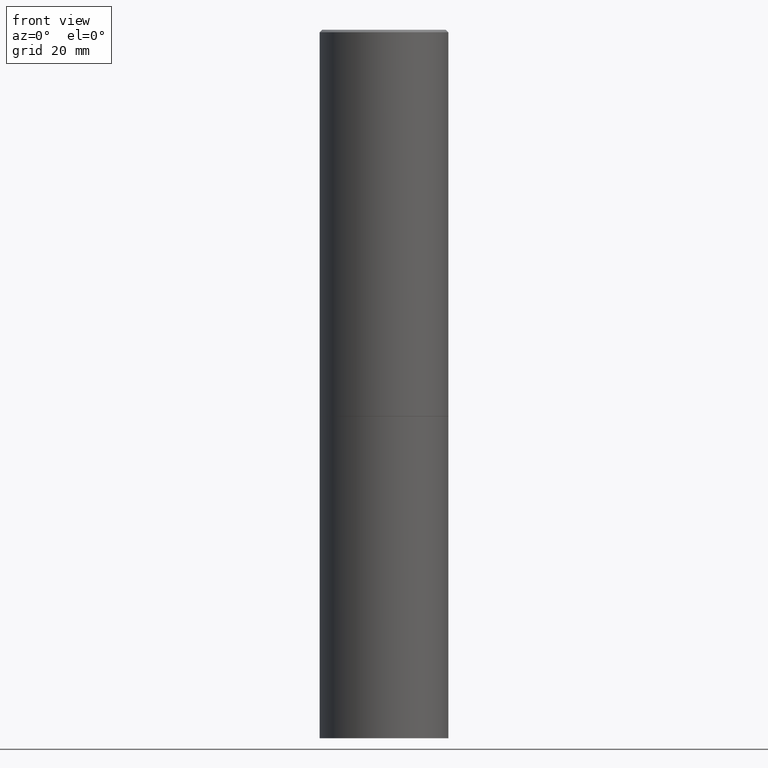
[diagram: clean part render]
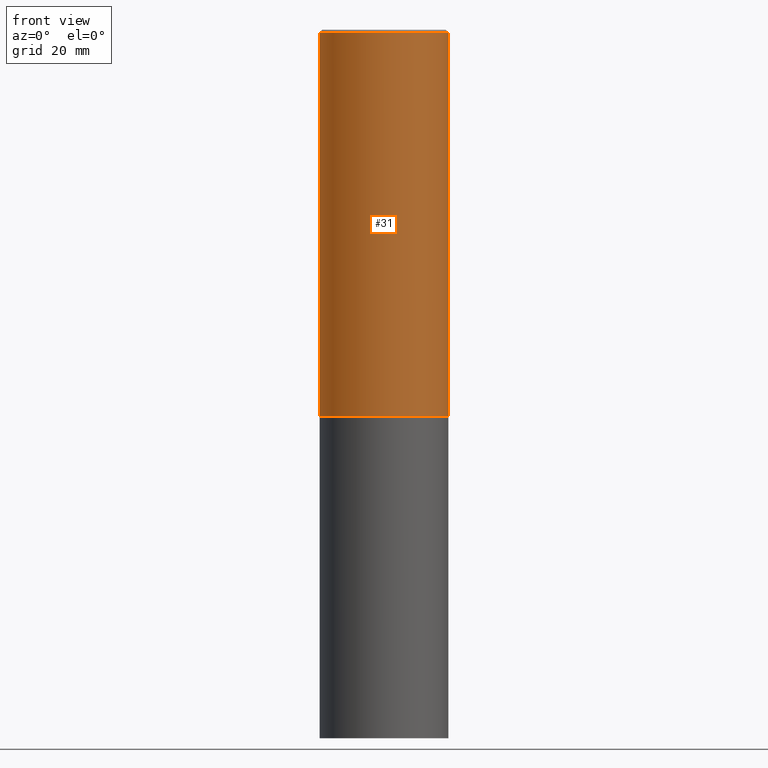
[diagram: same view with one face highlighted and labeled with its STEP entity id]
A machine part, front view. The second image highlights one B-rep face of the part: STEP entity #31.
In plain terms, the highlighted cylindrical surface (partial cylindrical patch) has radius 12.7 mm, axis along (-0, 0, 1).
Its self-contained STEP definition (entity closure, byte-faithful):
#5 = EDGE_CURVE ( 'NONE', #277, #221, #28, .T. ) ;
#10 = DIRECTION ( 'NONE',  ( -2.445468806185136597E-29, 3.491481338843145583E-15, 1.000000000000000000 ) ) ;
#28 = LINE ( 'NONE', #250, #178 ) ;
#31 = ADVANCED_FACE ( 'NONE', ( #247 ), #297, .T. ) ;
#43 = DIRECTION ( 'NONE',  ( -2.445468806185136597E-29, 3.491481338843145583E-15, 1.000000000000000000 ) ) ;
#46 = ORIENTED_EDGE ( 'NONE', *, *, #303, .F. ) ;
#58 = AXIS2_PLACEMENT_3D ( 'NONE', #68, #43, #174 ) ;
#63 = CARTESIAN_POINT ( 'NONE',  ( 0.000000000000000000, 0.000000000000000000, 0.000000000000000000 ) ) ;
#65 = EDGE_LOOP ( 'NONE', ( #301, #90, #351, #46 ) ) ;
#68 = CARTESIAN_POINT ( 'NONE',  ( 7.333960949749226429E-29, -1.047095253519059492E-14, -2.999000000000000554 ) ) ;
#70 = CARTESIAN_POINT ( 'NONE',  ( 0.4999999999999998335, -3.491481338843132566E-15, 2.438088387897967336E-29 ) ) ;
#77 = DIRECTION ( 'NONE',  ( 1.000000000000000000, -6.982962677686266711E-15, 0.000000000000000000 ) ) ;
#90 = ORIENTED_EDGE ( 'NONE', *, *, #147, .T. ) ;
#91 = CIRCLE ( 'NONE', #58, 0.5000000000000000000 ) ;
#97 = LINE ( 'NONE', #70, #359 ) ;
#104 = CARTESIAN_POINT ( 'NONE',  ( -0.5000000000000000000, -1.717677402183226998E-15, -2.999000000000000554 ) ) ;
#114 = DIRECTION ( 'NONE',  ( -2.445468806185136597E-29, 3.491481338843145583E-15, 1.000000000000000000 ) ) ;
#120 = CARTESIAN_POINT ( 'NONE',  ( 0.4999999999999997224, -3.500078625662627502E-15, -0.02000000000000013572 ) ) ;
#147 = EDGE_CURVE ( 'NONE', #277, #270, #91, .T. ) ;
#149 = EDGE_CURVE ( 'NONE', #270, #224, #97, .T. ) ;
#174 = DIRECTION ( 'NONE',  ( 1.000000000000000000, -6.982962677686266711E-15, 0.000000000000000000 ) ) ;
#178 = VECTOR ( 'NONE', #325, 39.37007874015748143 ) ;
#203 = CIRCLE ( 'NONE', #336, 0.4999999999999997224 ) ;
#214 = CARTESIAN_POINT ( 'NONE',  ( 4.890937612370306439E-31, -6.982962677686338448E-17, -0.02000000000000013572 ) ) ;
#221 = VERTEX_POINT ( 'NONE', #344 ) ;
#224 = VERTEX_POINT ( 'NONE', #120 ) ;
#232 = DIRECTION ( 'NONE',  ( -2.445468806185136877E-29, 3.491481338843145188E-15, 1.000000000000000000 ) ) ;
#247 = FACE_OUTER_BOUND ( 'NONE', #65, .T. ) ;
#250 = CARTESIAN_POINT ( 'NONE',  ( -0.4999999999999998335, 3.552713678800499746E-15, -2.459467545127452330E-29 ) ) ;
#252 = DIRECTION ( 'NONE',  ( 1.000000000000000000, -6.982962677686267499E-15, 4.876176775795936353E-29 ) ) ;
#256 = AXIS2_PLACEMENT_3D ( 'NONE', #63, #114, #252 ) ;
#270 = VERTEX_POINT ( 'NONE', #314 ) ;
#277 = VERTEX_POINT ( 'NONE', #104 ) ;
#297 = CYLINDRICAL_SURFACE ( 'NONE', #256, 0.4999999999999998335 ) ;
#301 = ORIENTED_EDGE ( 'NONE', *, *, #5, .F. ) ;
#303 = EDGE_CURVE ( 'NONE', #221, #224, #203, .T. ) ;
#314 = CARTESIAN_POINT ( 'NONE',  ( 0.5000000000000000000, -1.396243387403372828E-14, -2.999000000000000554 ) ) ;
#325 = DIRECTION ( 'NONE',  ( -2.445468806185136877E-29, 3.491481338843145188E-15, 1.000000000000000000 ) ) ;
#336 = AXIS2_PLACEMENT_3D ( 'NONE', #214, #10, #77 ) ;
#344 = CARTESIAN_POINT ( 'NONE',  ( -0.4999999999999997224, 3.421651712066268085E-15, -0.02000000000000013572 ) ) ;
#351 = ORIENTED_EDGE ( 'NONE', *, *, #149, .T. ) ;
#359 = VECTOR ( 'NONE', #232, 39.37007874015748143 ) ;